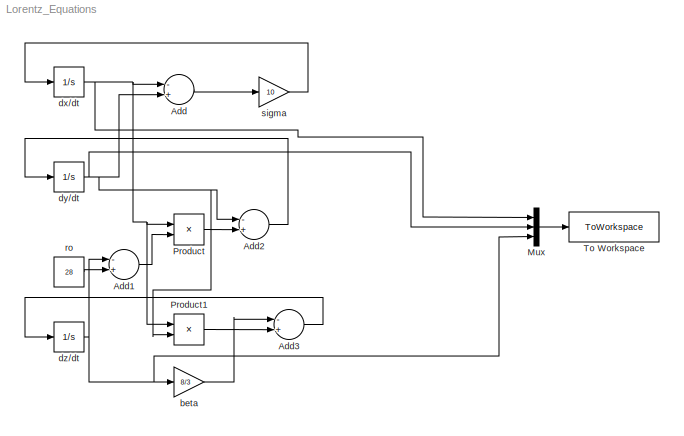
MODEL Lorentz_Equations
KIND model
BLOCK [Sum] Add
  InputSameDT = off
  Inputs = -+
  OutDataTypeStr = Inherit: Inherit via internal rule
  Ports = [2, 1]
  SID = 5
  SaturateOnIntegerOverflow = off
BLOCK [Sum] Add1
  InputSameDT = off
  Inputs = -+
  OutDataTypeStr = Inherit: Inherit via internal rule
  Ports = [2, 1]
  SID = 7
  SaturateOnIntegerOverflow = off
BLOCK [Sum] Add2
  InputSameDT = off
  Inputs = -+
  OutDataTypeStr = Inherit: Inherit via internal rule
  Ports = [2, 1]
  SID = 9
  SaturateOnIntegerOverflow = off
BLOCK [Sum] Add3
  InputSameDT = off
  Inputs = -+
  OutDataTypeStr = Inherit: Inherit via internal rule
  Ports = [2, 1]
  SID = 12
  SaturateOnIntegerOverflow = off
BLOCK [Mux] Mux
  DisplayOption = bar
  Inputs = 3
  Ports = [3, 1]
  SID = 15
BLOCK [Product] Product
  InputSameDT = off
  OutDataTypeStr = Inherit: Inherit via internal rule
  Ports = [2, 1]
  RndMeth = Floor
  SID = 4
  SaturateOnIntegerOverflow = off
BLOCK [Product] Product1
  InputSameDT = off
  OutDataTypeStr = Inherit: Inherit via internal rule
  Ports = [2, 1]
  RndMeth = Floor
  SID = 10
  SaturateOnIntegerOverflow = off
BLOCK [ToWorkspace] To Workspace
  FixptAsFi = on
  MaxDataPoints = inf
  Ports = [1]
  SID = 14
  SampleTime = -1
  SaveFormat = Timeseries
  VariableName = xyz
BLOCK [Gain] beta
  Gain = 8/3
  OutDataTypeStr = Inherit: Inherit via internal rule
  ParamDataTypeStr = Inherit: Inherit via internal rule
  SID = 11
  SaturateOnIntegerOverflow = off
BLOCK [Integrator] dx//dt
  InitialCondition = 0.001
  Ports = [1, 1]
  SID = 1
BLOCK [Integrator] dy//dt
  InitialCondition = 0.001
  Ports = [1, 1]
  SID = 6
BLOCK [Integrator] dz//dt
  InitialCondition = 0.001
  Ports = [1, 1]
  SID = 8
BLOCK [Constant] ro
  SID = 3
  Value = 28
BLOCK [Gain] sigma
  Gain = 10
  OutDataTypeStr = Inherit: Inherit via internal rule
  ParamDataTypeStr = Inherit: Inherit via internal rule
  SID = 2
  SaturateOnIntegerOverflow = off
LINE Add1:1 -> Product:2
LINE Add2:1 -> dy//dt:1
LINE Add3:1 -> dz//dt:1
LINE Add:1 -> sigma:1
LINE Mux:1 -> To Workspace:1
LINE Product1:1 -> Add3:2
LINE Product:1 -> Add2:2
LINE beta:1 -> Add3:1
NET dx//dt:1 -> Add:1, Mux:1, Product1:1, Product:1
NET dy//dt:1 -> Add2:1, Add:2, Mux:2, Product1:2
NET dz//dt:1 -> Add1:1, Mux:3, beta:1
LINE ro:1 -> Add1:2
LINE sigma:1 -> dx//dt:1
note: NET lines group one-source signal fan-out (src -> all destinations, sorted); 1:1 wires keep LINE
